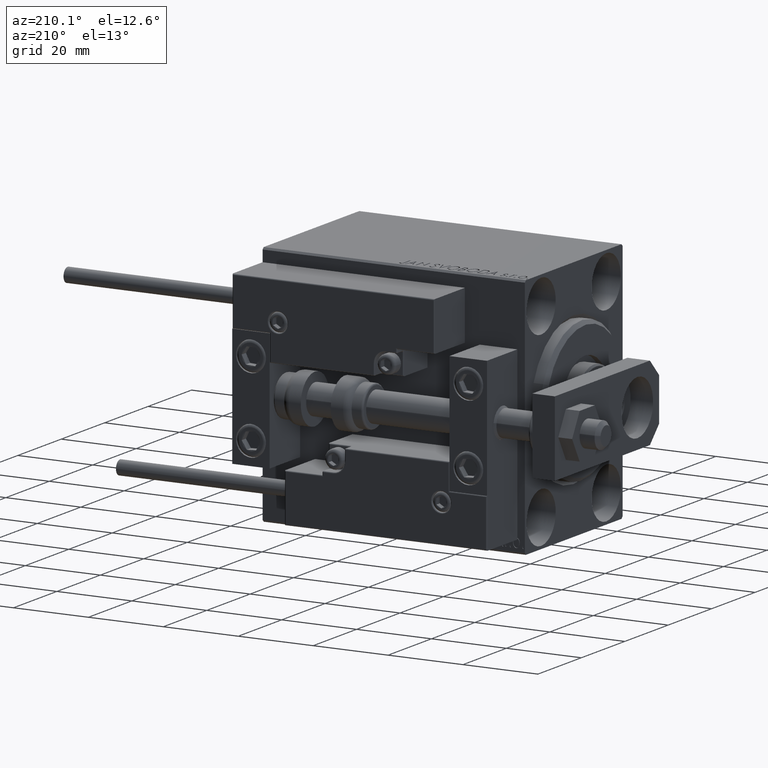
[diagram: clean part render]
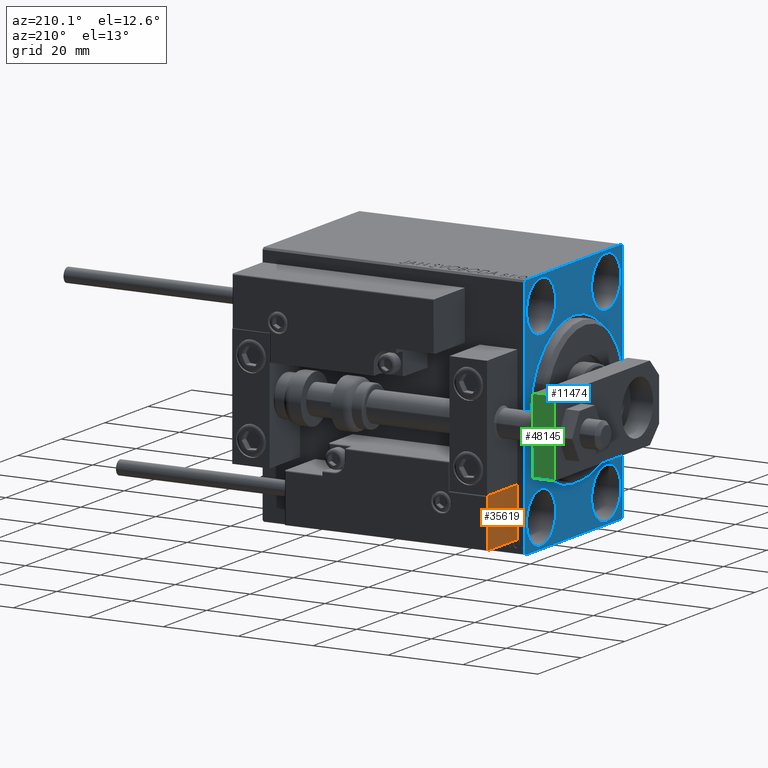
[diagram: same view with three faces highlighted in distinct colors, each labeled with its STEP entity id]
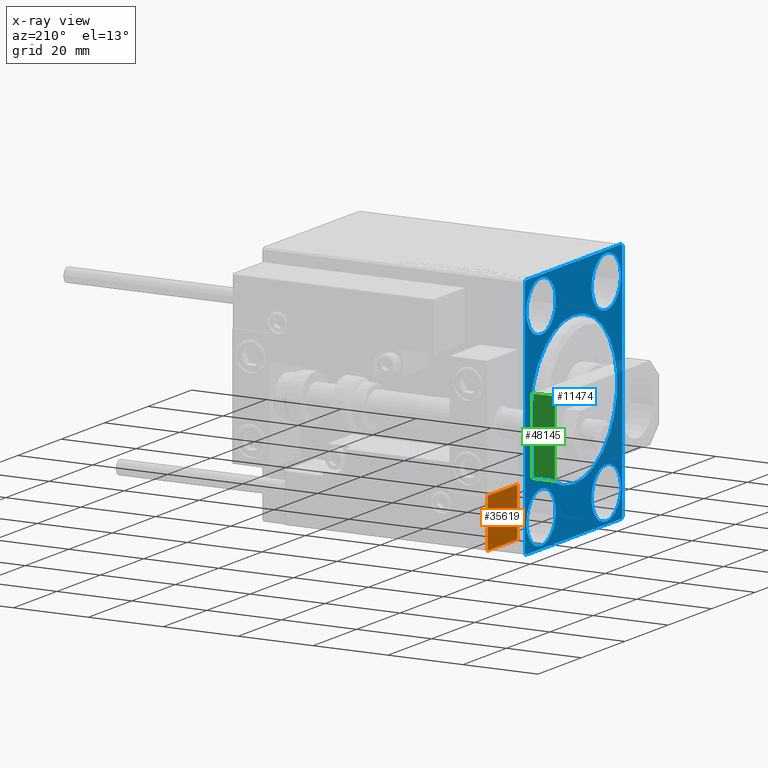
[diagram: x-ray of the same camera — body ghosted, the three highlighted faces saturated]
A machine part, auxiliary view with three faces highlighted in distinct colors.
The next image is the same camera in x-ray (body ghosted, the three faces saturated) — at least one of them is partly hidden behind the body in this view.
Their STEP definitions:

[orange] entity #35619 — the highlighted planar face has unit normal (1, 0, -0).
#325 = CARTESIAN_POINT ( 'NONE',  ( -26.99999999999994671, 7.000000000000005329, 14.00000000000000000 ) ) ;
#1164 = VERTEX_POINT ( 'NONE', #20819 ) ;
#1484 = EDGE_CURVE ( 'NONE', #33365, #18937, #16587, .T. ) ;
#4520 = VECTOR ( 'NONE', #7489, 1000.000000000000000 ) ;
#5469 = CARTESIAN_POINT ( 'NONE',  ( -26.99999999999993605, 20.00000000000002132, 14.00000000000000000 ) ) ;
#6100 = VECTOR ( 'NONE', #47652, 1000.000000000000000 ) ;
#7195 = AXIS2_PLACEMENT_3D ( 'NONE', #5469, #44169, #39596 ) ;
#7489 = DIRECTION ( 'NONE',  ( -8.006416042969869188E-16, -1.000000000000000000, 0.000000000000000000 ) ) ;
#10044 = EDGE_CURVE ( 'NONE', #1164, #18937, #27105, .T. ) ;
#10986 = EDGE_CURVE ( 'NONE', #33365, #29638, #41578, .T. ) ;
#16587 = LINE ( 'NONE', #325, #6100 ) ;
#16854 = DIRECTION ( 'NONE',  ( -0.000000000000000000, -0.000000000000000000, -1.000000000000000000 ) ) ;
#18937 = VERTEX_POINT ( 'NONE', #47543 ) ;
#20819 = CARTESIAN_POINT ( 'NONE',  ( -26.99999999999993605, 20.00000000000002132, 0.000000000000000000 ) ) ;
#21225 = DIRECTION ( 'NONE',  ( 8.006416042969869188E-16, 1.000000000000000000, -0.000000000000000000 ) ) ;
#27105 = LINE ( 'NONE', #42124, #4520 ) ;
#28101 = ORIENTED_EDGE ( 'NONE', *, *, #1484, .F. ) ;
#29638 = VERTEX_POINT ( 'NONE', #38357 ) ;
#29891 = VECTOR ( 'NONE', #16854, 1000.000000000000000 ) ;
#30700 = EDGE_LOOP ( 'NONE', ( #28101, #32869, #50247, #45077 ) ) ;
#31464 = LINE ( 'NONE', #34788, #29891 ) ;
#32341 = EDGE_CURVE ( 'NONE', #29638, #1164, #31464, .T. ) ;
#32869 = ORIENTED_EDGE ( 'NONE', *, *, #10986, .T. ) ;
#33365 = VERTEX_POINT ( 'NONE', #37853 ) ;
#34788 = CARTESIAN_POINT ( 'NONE',  ( -26.99999999999993605, 20.00000000000002132, 14.00000000000000000 ) ) ;
#35619 = ADVANCED_FACE ( 'NONE', ( #39842 ), #43667, .F. ) ;
#37853 = CARTESIAN_POINT ( 'NONE',  ( -26.99999999999994671, 7.000000000000005329, 13.70000000000000107 ) ) ;
#38357 = CARTESIAN_POINT ( 'NONE',  ( -26.99999999999993605, 20.00000000000002132, 13.70000000000000107 ) ) ;
#39596 = DIRECTION ( 'NONE',  ( 8.006416042969869188E-16, 1.000000000000000000, 0.000000000000000000 ) ) ;
#39842 = FACE_OUTER_BOUND ( 'NONE', #30700, .T. ) ;
#41080 = CARTESIAN_POINT ( 'NONE',  ( -26.99999999999993605, 20.00000000000002132, 13.70000000000000107 ) ) ;
#41578 = LINE ( 'NONE', #41080, #48462 ) ;
#42124 = CARTESIAN_POINT ( 'NONE',  ( -26.99999999999993605, 20.00000000000002132, 0.000000000000000000 ) ) ;
#43667 = PLANE ( 'NONE',  #7195 ) ;
#44169 = DIRECTION ( 'NONE',  ( 1.000000000000000000, -8.006416042969869188E-16, 0.000000000000000000 ) ) ;
#45077 = ORIENTED_EDGE ( 'NONE', *, *, #10044, .T. ) ;
#47543 = CARTESIAN_POINT ( 'NONE',  ( -26.99999999999994671, 7.000000000000005329, 0.000000000000000000 ) ) ;
#47652 = DIRECTION ( 'NONE',  ( -0.000000000000000000, -0.000000000000000000, -1.000000000000000000 ) ) ;
#48462 = VECTOR ( 'NONE', #21225, 1000.000000000000000 ) ;
#50247 = ORIENTED_EDGE ( 'NONE', *, *, #32341, .T. ) ;

[blue] entity #11474 — the highlighted planar face has unit normal (1, 0, 0).
#726 = EDGE_CURVE ( 'NONE', #50330, #1948, #46671, .T. ) ;
#1003 = FACE_BOUND ( 'NONE', #15902, .T. ) ;
#1054 = CARTESIAN_POINT ( 'NONE',  ( 0.000000000000000000, 22.50000000000000000, -32.50000000000000711 ) ) ;
#1256 = CARTESIAN_POINT ( 'NONE',  ( 0.000000000000000000, 0.000000000000000000, 0.000000000000000000 ) ) ;
#1479 = EDGE_LOOP ( 'NONE', ( #39876, #9054 ) ) ;
#1728 = CIRCLE ( 'NONE', #14723, 6.749999999999999112 ) ;
#1830 = ORIENTED_EDGE ( 'NONE', *, *, #16313, .F. ) ;
#1948 = VERTEX_POINT ( 'NONE', #47031 ) ;
#2615 = VERTEX_POINT ( 'NONE', #27328 ) ;
#2865 = EDGE_CURVE ( 'NONE', #1948, #50330, #41179, .T. ) ;
#4250 = ORIENTED_EDGE ( 'NONE', *, *, #39829, .T. ) ;
#4313 = ORIENTED_EDGE ( 'NONE', *, *, #43750, .F. ) ;
#4486 = DIRECTION ( 'NONE',  ( -0.000000000000000000, -0.7071067811865378028, 0.7071067811865573427 ) ) ;
#4809 = DIRECTION ( 'NONE',  ( -1.000000000000000000, 0.000000000000000000, 0.000000000000000000 ) ) ;
#5000 = CARTESIAN_POINT ( 'NONE',  ( 0.000000000000000000, 22.49999999999999289, 31.99999999999999289 ) ) ;
#5356 = AXIS2_PLACEMENT_3D ( 'NONE', #1256, #46835, #31816 ) ;
#6449 = CIRCLE ( 'NONE', #13859, 20.00000000000000355 ) ;
#6869 = CARTESIAN_POINT ( 'NONE',  ( 0.000000000000000000, 14.99999999999999645, -25.00000000000000000 ) ) ;
#6904 = DIRECTION ( 'NONE',  ( -1.000000000000000000, 0.000000000000000000, 0.000000000000000000 ) ) ;
#7018 = CIRCLE ( 'NONE', #33864, 6.749999999999999112 ) ;
#7051 = ORIENTED_EDGE ( 'NONE', *, *, #2865, .F. ) ;
#7739 = AXIS2_PLACEMENT_3D ( 'NONE', #6869, #17828, #33377 ) ;
#8601 = CARTESIAN_POINT ( 'NONE',  ( 0.000000000000000000, -15.00000000000000355, -18.25000000000000355 ) ) ;
#9054 = ORIENTED_EDGE ( 'NONE', *, *, #24233, .F. ) ;
#9671 = CARTESIAN_POINT ( 'NONE',  ( 0.000000000000000000, 2.449293598294706907E-15, -20.00000000000000355 ) ) ;
#9719 = AXIS2_PLACEMENT_3D ( 'NONE', #30862, #27304, #14579 ) ;
#9791 = EDGE_CURVE ( 'NONE', #49755, #43143, #32138, .T. ) ;
#9985 = EDGE_LOOP ( 'NONE', ( #34180, #7051 ) ) ;
#10117 = DIRECTION ( 'NONE',  ( 0.000000000000000000, 0.000000000000000000, 1.000000000000000000 ) ) ;
#10435 = ORIENTED_EDGE ( 'NONE', *, *, #30617, .T. ) ;
#10856 = CARTESIAN_POINT ( 'NONE',  ( 0.000000000000000000, -22.50000000000000711, -32.50000000000000711 ) ) ;
#10957 = CARTESIAN_POINT ( 'NONE',  ( 0.000000000000000000, -15.00000000000000355, -25.00000000000000000 ) ) ;
#11474 = ADVANCED_FACE ( 'NONE', ( #39696, #23672, #1003, #24424, #47086, #19598 ), #31315, .F. ) ;
#11622 = ORIENTED_EDGE ( 'NONE', *, *, #30366, .F. ) ;
#12555 = EDGE_CURVE ( 'NONE', #34096, #30886, #7018, .T. ) ;
#12867 = DIRECTION ( 'NONE',  ( -0.000000000000000000, 0.7071067811865474617, 0.7071067811865474617 ) ) ;
#12871 = DIRECTION ( 'NONE',  ( 1.000000000000000000, 0.000000000000000000, 0.000000000000000000 ) ) ;
#13001 = VECTOR ( 'NONE', #4486, 1000.000000000000000 ) ;
#13183 = DIRECTION ( 'NONE',  ( -0.000000000000000000, 0.7071067811865425767, -0.7071067811865525687 ) ) ;
#13277 = DIRECTION ( 'NONE',  ( 0.000000000000000000, 0.000000000000000000, 1.000000000000000000 ) ) ;
#13859 = AXIS2_PLACEMENT_3D ( 'NONE', #44005, #35865, #20576 ) ;
#13957 = CARTESIAN_POINT ( 'NONE',  ( 0.000000000000000000, -15.00000000000000355, -25.00000000000000000 ) ) ;
#14025 = CIRCLE ( 'NONE', #46551, 6.749999999999999112 ) ;
#14250 = EDGE_CURVE ( 'NONE', #47133, #43995, #34831, .T. ) ;
#14579 = DIRECTION ( 'NONE',  ( 0.000000000000000000, 0.000000000000000000, 1.000000000000000000 ) ) ;
#14723 = AXIS2_PLACEMENT_3D ( 'NONE', #10957, #6904, #22428 ) ;
#15589 = CIRCLE ( 'NONE', #48927, 20.00000000000000355 ) ;
#15902 = EDGE_LOOP ( 'NONE', ( #46010, #11622 ) ) ;
#16203 = VERTEX_POINT ( 'NONE', #35617 ) ;
#16313 = EDGE_CURVE ( 'NONE', #26535, #49525, #30730, .T. ) ;
#16567 = DIRECTION ( 'NONE',  ( 0.000000000000000000, -1.067522139062650425E-16, 1.000000000000000000 ) ) ;
#16653 = VERTEX_POINT ( 'NONE', #24275 ) ;
#16949 = LINE ( 'NONE', #44211, #27039 ) ;
#17156 = CIRCLE ( 'NONE', #42342, 6.749999999999999112 ) ;
#17445 = DIRECTION ( 'NONE',  ( 0.000000000000000000, -0.7071067811865376918, -0.7071067811865573427 ) ) ;
#17572 = DIRECTION ( 'NONE',  ( 0.000000000000000000, 0.000000000000000000, 1.000000000000000000 ) ) ;
#17828 = DIRECTION ( 'NONE',  ( -1.000000000000000000, 0.000000000000000000, 0.000000000000000000 ) ) ;
#18228 = CARTESIAN_POINT ( 'NONE',  ( 0.000000000000000000, -14.99999999999999645, 31.75000000000000000 ) ) ;
#18312 = DIRECTION ( 'NONE',  ( -1.000000000000000000, 0.000000000000000000, 0.000000000000000000 ) ) ;
#18359 = CARTESIAN_POINT ( 'NONE',  ( 0.000000000000000000, 15.00000000000000355, 25.00000000000000000 ) ) ;
#19598 = FACE_OUTER_BOUND ( 'NONE', #28180, .T. ) ;
#19890 = VERTEX_POINT ( 'NONE', #48248 ) ;
#20576 = DIRECTION ( 'NONE',  ( 0.000000000000000000, 0.000000000000000000, -1.000000000000000000 ) ) ;
#21686 = DIRECTION ( 'NONE',  ( -1.000000000000000000, 0.000000000000000000, 0.000000000000000000 ) ) ;
#22428 = DIRECTION ( 'NONE',  ( 0.000000000000000000, 0.000000000000000000, 1.000000000000000000 ) ) ;
#22523 = VECTOR ( 'NONE', #46784, 1000.000000000000000 ) ;
#22789 = ORIENTED_EDGE ( 'NONE', *, *, #37420, .T. ) ;
#23403 = VECTOR ( 'NONE', #26924, 1000.000000000000000 ) ;
#23672 = FACE_BOUND ( 'NONE', #1479, .T. ) ;
#23827 = CARTESIAN_POINT ( 'NONE',  ( 0.000000000000000000, -22.00000000000002132, -32.50000000000000711 ) ) ;
#23978 = LINE ( 'NONE', #1054, #31000 ) ;
#24187 = ORIENTED_EDGE ( 'NONE', *, *, #12555, .F. ) ;
#24233 = EDGE_CURVE ( 'NONE', #43143, #49755, #25986, .T. ) ;
#24275 = CARTESIAN_POINT ( 'NONE',  ( 0.000000000000000000, 22.50000000000000000, -32.00000000000002132 ) ) ;
#24424 = FACE_BOUND ( 'NONE', #9985, .T. ) ;
#24439 = VERTEX_POINT ( 'NONE', #9671 ) ;
#24666 = DIRECTION ( 'NONE',  ( 0.000000000000000000, -1.000000000000000000, -1.541976423090495387E-16 ) ) ;
#25428 = LINE ( 'NONE', #41202, #33431 ) ;
#25986 = CIRCLE ( 'NONE', #9719, 6.749999999999999112 ) ;
#26173 = ORIENTED_EDGE ( 'NONE', *, *, #44553, .F. ) ;
#26535 = VERTEX_POINT ( 'NONE', #41157 ) ;
#26924 = DIRECTION ( 'NONE',  ( 0.000000000000000000, 1.000000000000000000, 0.000000000000000000 ) ) ;
#26927 = EDGE_LOOP ( 'NONE', ( #43128, #4250 ) ) ;
#27039 = VECTOR ( 'NONE', #12867, 1000.000000000000114 ) ;
#27304 = DIRECTION ( 'NONE',  ( -1.000000000000000000, 0.000000000000000000, 0.000000000000000000 ) ) ;
#27328 = CARTESIAN_POINT ( 'NONE',  ( 0.000000000000000000, 0.000000000000000000, 20.00000000000000355 ) ) ;
#27476 = EDGE_CURVE ( 'NONE', #16653, #30706, #23978, .T. ) ;
#27657 = LINE ( 'NONE', #23827, #13001 ) ;
#28073 = CARTESIAN_POINT ( 'NONE',  ( 0.000000000000000000, -14.99999999999999645, 25.00000000000000000 ) ) ;
#28091 = EDGE_CURVE ( 'NONE', #2615, #24439, #15589, .T. ) ;
#28180 = EDGE_LOOP ( 'NONE', ( #32495, #10435, #4313, #31244, #49761, #22789, #1830, #30071 ) ) ;
#28234 = CARTESIAN_POINT ( 'NONE',  ( 0.000000000000000000, -14.99999999999999645, 25.00000000000000000 ) ) ;
#28945 = DIRECTION ( 'NONE',  ( 0.000000000000000000, 0.000000000000000000, -1.000000000000000000 ) ) ;
#30071 = ORIENTED_EDGE ( 'NONE', *, *, #39282, .T. ) ;
#30366 = EDGE_CURVE ( 'NONE', #16203, #49595, #14025, .T. ) ;
#30617 = EDGE_CURVE ( 'NONE', #47133, #48645, #16949, .T. ) ;
#30691 = CARTESIAN_POINT ( 'NONE',  ( 0.000000000000000000, -22.50000000000000711, -32.00000000000000711 ) ) ;
#30706 = VERTEX_POINT ( 'NONE', #5000 ) ;
#30730 = LINE ( 'NONE', #10856, #23403 ) ;
#30862 = CARTESIAN_POINT ( 'NONE',  ( 0.000000000000000000, 14.99999999999999645, -25.00000000000000000 ) ) ;
#30886 = VERTEX_POINT ( 'NONE', #46948 ) ;
#31000 = VECTOR ( 'NONE', #16567, 1000.000000000000000 ) ;
#31244 = ORIENTED_EDGE ( 'NONE', *, *, #39858, .T. ) ;
#31315 = PLANE ( 'NONE',  #5356 ) ;
#31816 = DIRECTION ( 'NONE',  ( 0.000000000000000000, 0.000000000000000000, -1.000000000000000000 ) ) ;
#31886 = DIRECTION ( 'NONE',  ( -1.000000000000000000, 0.000000000000000000, 0.000000000000000000 ) ) ;
#32026 = EDGE_LOOP ( 'NONE', ( #24187, #26173 ) ) ;
#32138 = CIRCLE ( 'NONE', #7739, 6.749999999999999112 ) ;
#32478 = CARTESIAN_POINT ( 'NONE',  ( 0.000000000000000000, 22.50000000000000000, -32.00000000000002132 ) ) ;
#32495 = ORIENTED_EDGE ( 'NONE', *, *, #14250, .F. ) ;
#32553 = CARTESIAN_POINT ( 'NONE',  ( 0.000000000000000000, 21.99999999999999289, 32.50000000000000000 ) ) ;
#32973 = CARTESIAN_POINT ( 'NONE',  ( 0.000000000000000000, 14.99999999999999645, -31.75000000000000000 ) ) ;
#33114 = CARTESIAN_POINT ( 'NONE',  ( 0.000000000000000000, 15.00000000000000355, 25.00000000000000000 ) ) ;
#33377 = DIRECTION ( 'NONE',  ( 0.000000000000000000, 0.000000000000000000, 1.000000000000000000 ) ) ;
#33431 = VECTOR ( 'NONE', #24666, 1000.000000000000000 ) ;
#33864 = AXIS2_PLACEMENT_3D ( 'NONE', #13957, #45024, #10117 ) ;
#34096 = VERTEX_POINT ( 'NONE', #8601 ) ;
#34180 = ORIENTED_EDGE ( 'NONE', *, *, #726, .F. ) ;
#34628 = CARTESIAN_POINT ( 'NONE',  ( 0.000000000000000000, -22.50000000000000711, 31.99999999999999289 ) ) ;
#34831 = LINE ( 'NONE', #43216, #22523 ) ;
#35325 = CARTESIAN_POINT ( 'NONE',  ( 0.000000000000000000, -21.99999999999999289, 32.49999999999999289 ) ) ;
#35617 = CARTESIAN_POINT ( 'NONE',  ( 0.000000000000000000, -14.99999999999999645, 18.25000000000000355 ) ) ;
#35865 = DIRECTION ( 'NONE',  ( 1.000000000000000000, 0.000000000000000000, 0.000000000000000000 ) ) ;
#36623 = LINE ( 'NONE', #32553, #43831 ) ;
#37420 = EDGE_CURVE ( 'NONE', #16653, #49525, #47998, .T. ) ;
#39282 = EDGE_CURVE ( 'NONE', #26535, #43995, #27657, .T. ) ;
#39369 = AXIS2_PLACEMENT_3D ( 'NONE', #33114, #18312, #17572 ) ;
#39696 = FACE_BOUND ( 'NONE', #26927, .T. ) ;
#39829 = EDGE_CURVE ( 'NONE', #24439, #2615, #6449, .T. ) ;
#39858 = EDGE_CURVE ( 'NONE', #19890, #30706, #36623, .T. ) ;
#39876 = ORIENTED_EDGE ( 'NONE', *, *, #9791, .F. ) ;
#40126 = CARTESIAN_POINT ( 'NONE',  ( 0.000000000000000000, 0.000000000000000000, 0.000000000000000000 ) ) ;
#40897 = CARTESIAN_POINT ( 'NONE',  ( 0.000000000000000000, 22.00000000000001421, -32.50000000000000711 ) ) ;
#41157 = CARTESIAN_POINT ( 'NONE',  ( 0.000000000000000000, -22.00000000000002132, -32.50000000000000711 ) ) ;
#41179 = CIRCLE ( 'NONE', #46043, 6.749999999999999112 ) ;
#41202 = CARTESIAN_POINT ( 'NONE',  ( 0.000000000000000000, 22.49999999999999289, 32.50000000000000000 ) ) ;
#42342 = AXIS2_PLACEMENT_3D ( 'NONE', #28073, #31886, #13277 ) ;
#42962 = CARTESIAN_POINT ( 'NONE',  ( 0.000000000000000000, 15.00000000000000355, 31.75000000000000000 ) ) ;
#43128 = ORIENTED_EDGE ( 'NONE', *, *, #28091, .T. ) ;
#43143 = VERTEX_POINT ( 'NONE', #32973 ) ;
#43216 = CARTESIAN_POINT ( 'NONE',  ( 0.000000000000000000, -22.50000000000000711, 32.49999999999999289 ) ) ;
#43333 = CARTESIAN_POINT ( 'NONE',  ( 0.000000000000000000, 14.99999999999999645, -18.25000000000000355 ) ) ;
#43509 = DIRECTION ( 'NONE',  ( 0.000000000000000000, 0.000000000000000000, 1.000000000000000000 ) ) ;
#43750 = EDGE_CURVE ( 'NONE', #19890, #48645, #25428, .T. ) ;
#43831 = VECTOR ( 'NONE', #13183, 999.9999999999998863 ) ;
#43995 = VERTEX_POINT ( 'NONE', #30691 ) ;
#44005 = CARTESIAN_POINT ( 'NONE',  ( 0.000000000000000000, 0.000000000000000000, 0.000000000000000000 ) ) ;
#44211 = CARTESIAN_POINT ( 'NONE',  ( 0.000000000000000000, -22.50000000000000711, 31.99999999999999289 ) ) ;
#44488 = EDGE_CURVE ( 'NONE', #49595, #16203, #17156, .T. ) ;
#44553 = EDGE_CURVE ( 'NONE', #30886, #34096, #1728, .T. ) ;
#45024 = DIRECTION ( 'NONE',  ( -1.000000000000000000, 0.000000000000000000, 0.000000000000000000 ) ) ;
#46010 = ORIENTED_EDGE ( 'NONE', *, *, #44488, .F. ) ;
#46043 = AXIS2_PLACEMENT_3D ( 'NONE', #18359, #21686, #48430 ) ;
#46551 = AXIS2_PLACEMENT_3D ( 'NONE', #28234, #4809, #43509 ) ;
#46671 = CIRCLE ( 'NONE', #39369, 6.749999999999999112 ) ;
#46784 = DIRECTION ( 'NONE',  ( 0.000000000000000000, 0.000000000000000000, -1.000000000000000000 ) ) ;
#46835 = DIRECTION ( 'NONE',  ( 1.000000000000000000, 0.000000000000000000, 0.000000000000000000 ) ) ;
#46948 = CARTESIAN_POINT ( 'NONE',  ( 0.000000000000000000, -15.00000000000000355, -31.75000000000000000 ) ) ;
#47031 = CARTESIAN_POINT ( 'NONE',  ( 0.000000000000000000, 15.00000000000000355, 18.25000000000000355 ) ) ;
#47086 = FACE_BOUND ( 'NONE', #32026, .T. ) ;
#47133 = VERTEX_POINT ( 'NONE', #34628 ) ;
#47998 = LINE ( 'NONE', #32478, #50336 ) ;
#48248 = CARTESIAN_POINT ( 'NONE',  ( 0.000000000000000000, 21.99999999999999289, 32.50000000000000000 ) ) ;
#48430 = DIRECTION ( 'NONE',  ( 0.000000000000000000, 0.000000000000000000, 1.000000000000000000 ) ) ;
#48645 = VERTEX_POINT ( 'NONE', #35325 ) ;
#48927 = AXIS2_PLACEMENT_3D ( 'NONE', #40126, #12871, #28945 ) ;
#49525 = VERTEX_POINT ( 'NONE', #40897 ) ;
#49595 = VERTEX_POINT ( 'NONE', #18228 ) ;
#49755 = VERTEX_POINT ( 'NONE', #43333 ) ;
#49761 = ORIENTED_EDGE ( 'NONE', *, *, #27476, .F. ) ;
#50330 = VERTEX_POINT ( 'NONE', #42962 ) ;
#50336 = VECTOR ( 'NONE', #17445, 1000.000000000000114 ) ;

[green] entity #48145 — the highlighted planar face has unit normal (0, -1, 0).
#2124 = ORIENTED_EDGE ( 'NONE', *, *, #9476, .T. ) ;
#2186 = EDGE_CURVE ( 'NONE', #42579, #39527, #14669, .T. ) ;
#2328 = DIRECTION ( 'NONE',  ( 0.000000000000000000, -1.000000000000000000, 0.000000000000000000 ) ) ;
#4438 = DIRECTION ( 'NONE',  ( -0.000000000000000000, -0.000000000000000000, -1.000000000000000000 ) ) ;
#4665 = CARTESIAN_POINT ( 'NONE',  ( -10.00000000000000000, 48.00000000000000000, 6.000000000000000000 ) ) ;
#5254 = EDGE_LOOP ( 'NONE', ( #2124, #14251, #42497, #22703 ) ) ;
#5297 = EDGE_CURVE ( 'NONE', #39527, #50110, #41979, .T. ) ;
#8313 = VERTEX_POINT ( 'NONE', #36545 ) ;
#8567 = VECTOR ( 'NONE', #28042, 1000.000000000000000 ) ;
#9476 = EDGE_CURVE ( 'NONE', #8313, #50110, #23709, .T. ) ;
#14023 = DIRECTION ( 'NONE',  ( 0.000000000000000000, -0.000000000000000000, -1.000000000000000000 ) ) ;
#14251 = ORIENTED_EDGE ( 'NONE', *, *, #5297, .F. ) ;
#14669 = LINE ( 'NONE', #26129, #32105 ) ;
#16685 = VECTOR ( 'NONE', #50366, 1000.000000000000000 ) ;
#20132 = CARTESIAN_POINT ( 'NONE',  ( 10.00000000000000178, 48.00000000000000000, 0.000000000000000000 ) ) ;
#20347 = CARTESIAN_POINT ( 'NONE',  ( -10.00000000000000000, 48.00000000000000000, 0.000000000000000000 ) ) ;
#22703 = ORIENTED_EDGE ( 'NONE', *, *, #24957, .T. ) ;
#23709 = LINE ( 'NONE', #20132, #8567 ) ;
#24289 = CARTESIAN_POINT ( 'NONE',  ( 10.00000000000000178, 48.00000000000000000, 6.000000000000000000 ) ) ;
#24957 = EDGE_CURVE ( 'NONE', #42579, #8313, #47452, .T. ) ;
#26129 = CARTESIAN_POINT ( 'NONE',  ( 10.00000000000000178, 48.00000000000000000, 6.000000000000000000 ) ) ;
#27044 = AXIS2_PLACEMENT_3D ( 'NONE', #48911, #2328, #14023 ) ;
#28042 = DIRECTION ( 'NONE',  ( -1.000000000000000000, 0.000000000000000000, 0.000000000000000000 ) ) ;
#32105 = VECTOR ( 'NONE', #49547, 1000.000000000000000 ) ;
#36459 = CARTESIAN_POINT ( 'NONE',  ( 10.00000000000000178, 48.00000000000000000, 6.000000000000000000 ) ) ;
#36545 = CARTESIAN_POINT ( 'NONE',  ( 10.00000000000000178, 48.00000000000000000, 0.000000000000000000 ) ) ;
#38904 = CARTESIAN_POINT ( 'NONE',  ( -10.00000000000000000, 48.00000000000000000, 6.000000000000000000 ) ) ;
#39527 = VERTEX_POINT ( 'NONE', #4665 ) ;
#41260 = FACE_OUTER_BOUND ( 'NONE', #5254, .T. ) ;
#41979 = LINE ( 'NONE', #38904, #16685 ) ;
#42497 = ORIENTED_EDGE ( 'NONE', *, *, #2186, .F. ) ;
#42579 = VERTEX_POINT ( 'NONE', #36459 ) ;
#43104 = VECTOR ( 'NONE', #4438, 1000.000000000000000 ) ;
#47452 = LINE ( 'NONE', #24289, #43104 ) ;
#48145 = ADVANCED_FACE ( 'NONE', ( #41260 ), #49155, .F. ) ;
#48911 = CARTESIAN_POINT ( 'NONE',  ( 10.00000000000000178, 48.00000000000000000, 6.000000000000000000 ) ) ;
#49155 = PLANE ( 'NONE',  #27044 ) ;
#49547 = DIRECTION ( 'NONE',  ( -1.000000000000000000, 0.000000000000000000, 0.000000000000000000 ) ) ;
#50110 = VERTEX_POINT ( 'NONE', #20347 ) ;
#50366 = DIRECTION ( 'NONE',  ( -0.000000000000000000, -0.000000000000000000, -1.000000000000000000 ) ) ;